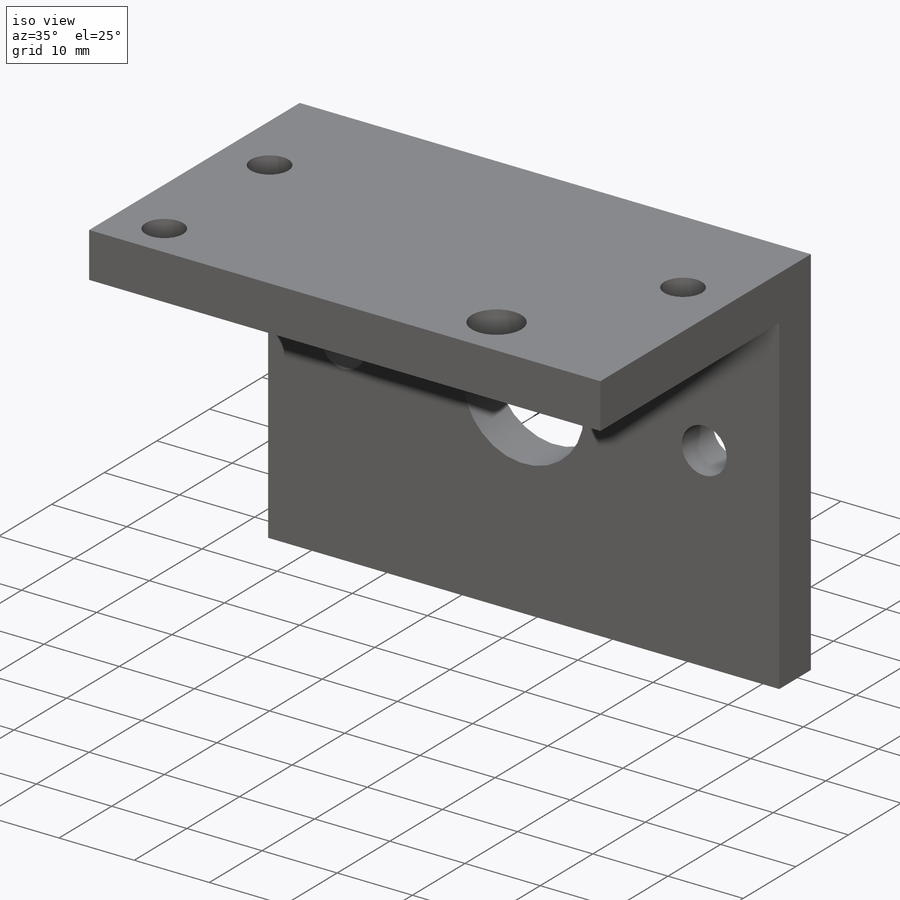
[diagram: iso view]
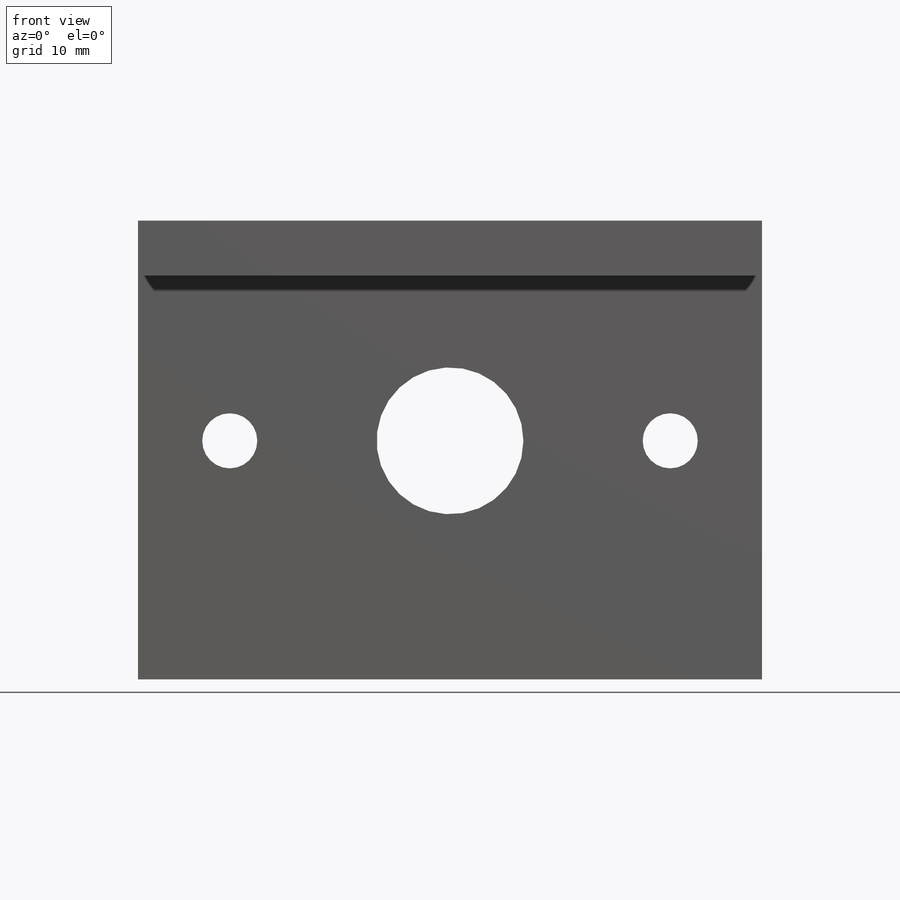
[diagram: front view]
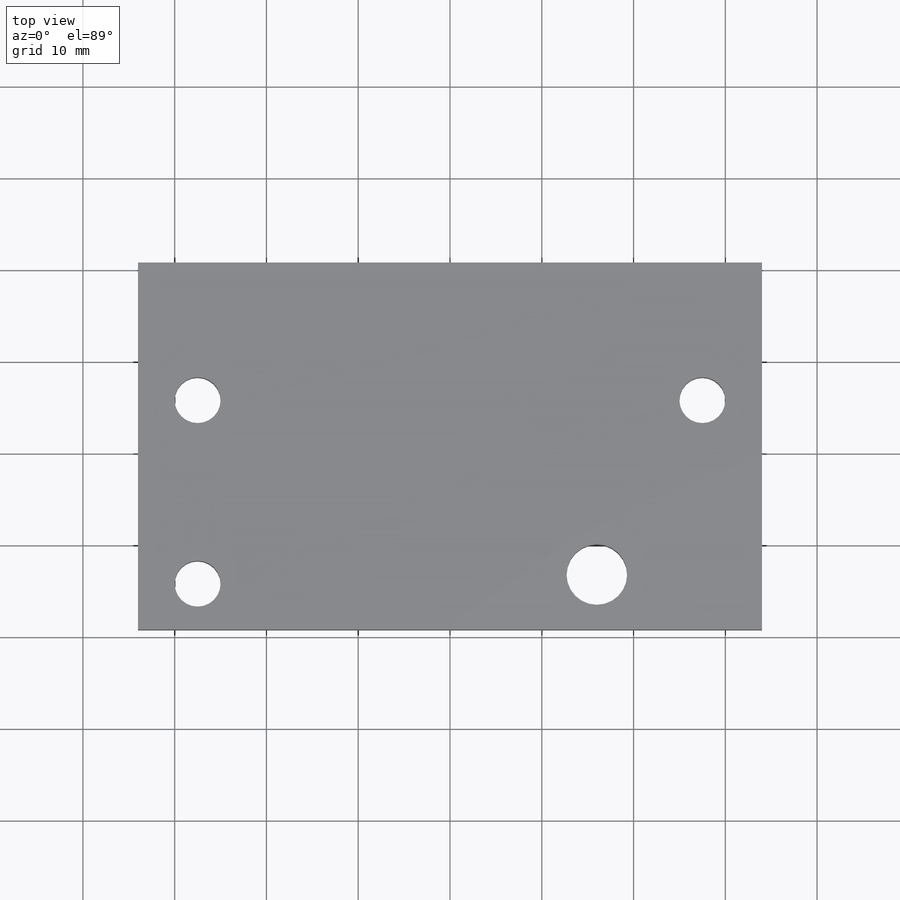
[diagram: top view]
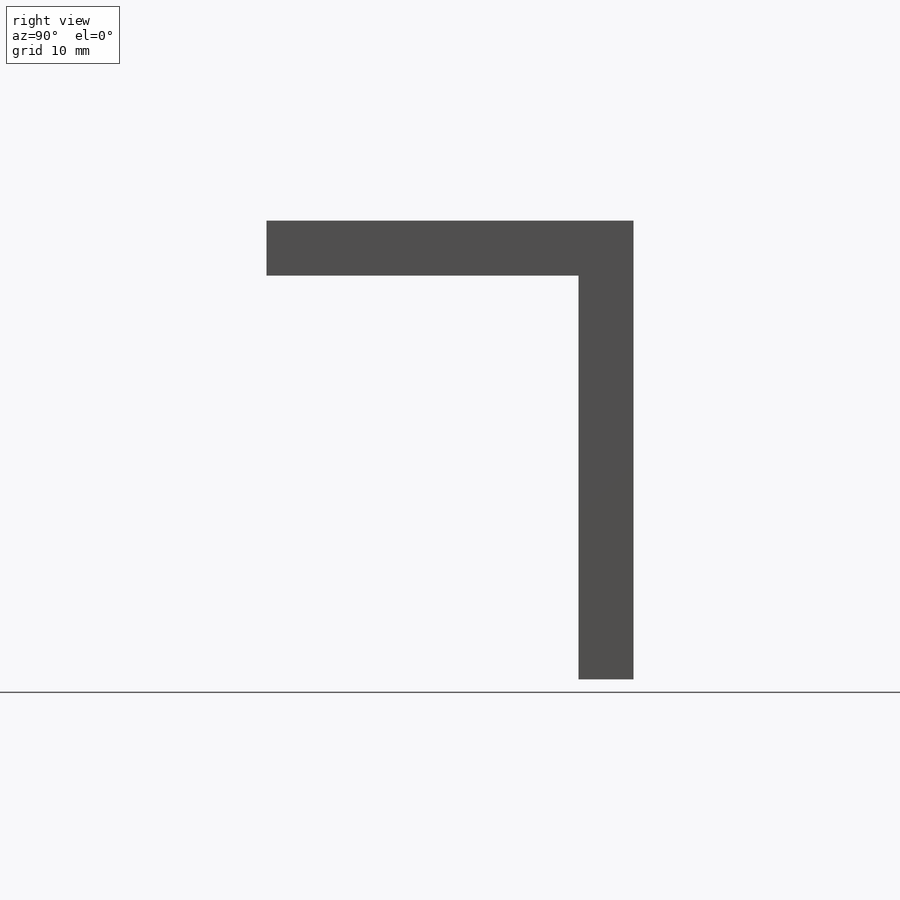
[diagram: right view]
SOLIDWORKS PART (.sldprt)
format: sldprt  version: not decoded by parser v0  size: 227,328 bytes
history: native  units: mm
features: sketch x4, plane x3, extrude x2, cut_extrude x2, material x1 (+10 scaffold rows collapsed)
feature tree (22):
  scaffold x10  (default folders/planes/origin — collapsed)
  material  "6061 合金"
  plane  "前视基准面"
  plane  "上视基准面"
  plane  "右视基准面"
  sketch  "草图1"  dims[c1.D7=5.0mm c1.D8=5.0mm c1.D9=5.0mm c1.D10=5.0mm c1.D1=~72.636681mm c1.D2=~115.164894mm c2.D1=68.0mm c2.D2=40.0mm c2.D3=30.0mm c2.D4=10.0mm c3.D3=55.0mm c3.D4=20.0mm c3.D5=5.0mm c3.D6=10.0mm c4.D5=15.0mm]
  extrude  "凸台-拉伸1"  Depth=6mm
  sketch  "草图3"  dims[c1.D1=17.5mm c1.D2=80.0mm c2.D1=6.0mm c2.D2=68.0mm c2.D3=6.0mm c2.D4=5.0mm]
  extrude  "凸台-拉伸2"  Depth=50mm
  sketch  "草图4"  dims[c1.D1=16.0mm c1.D3=6.0mm c2.D1=~11.261551mm c2.D2=22.5mm c2.D3=~4.41279mm c2.D4=24.0mm c2.D5=35.0mm c3.D2=24.0mm c3.D6=24.0mm]
  cut_extrude  "切除-拉伸1"  [1 undecoded]
  sketch  "草图5"  dims[c1.D3=6.6mm c1.D1=6.0mm c1.D2=18.0mm c2.D1=6.0mm c2.D2=~11.580013mm c3.D2=90.0deg c4.D2=18.0mm]
  cut_extrude  "切除-拉伸2"  Depth=10mm
decode coverage: 7 of 8 modeling features carry decoded parameters
note: ~ marks probable driven/reference dimensions
note: 1 parameter value undecoded
note: suppression state not decoded; provenance and decode notes live in map.json
